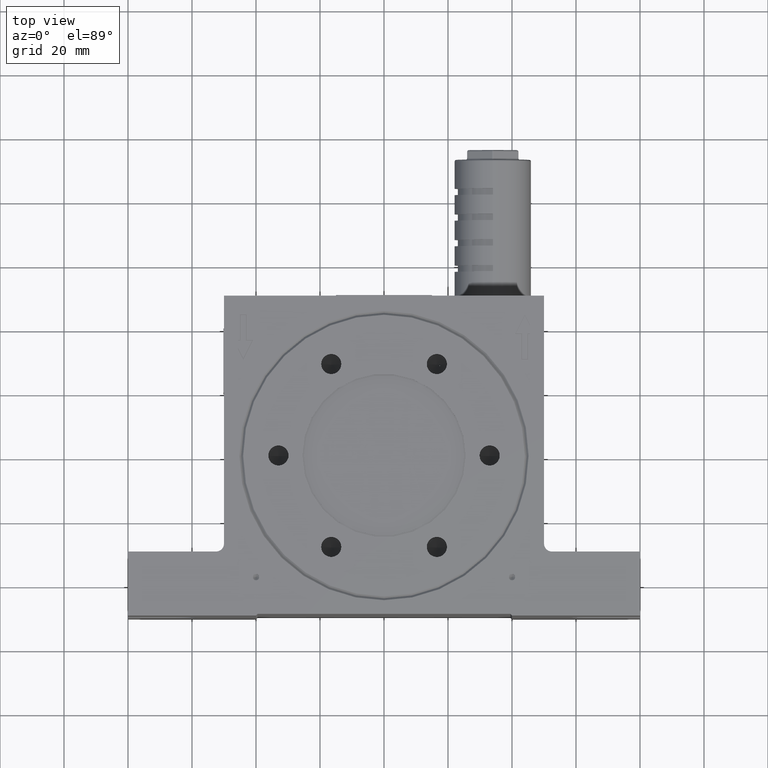
[diagram: clean part render]
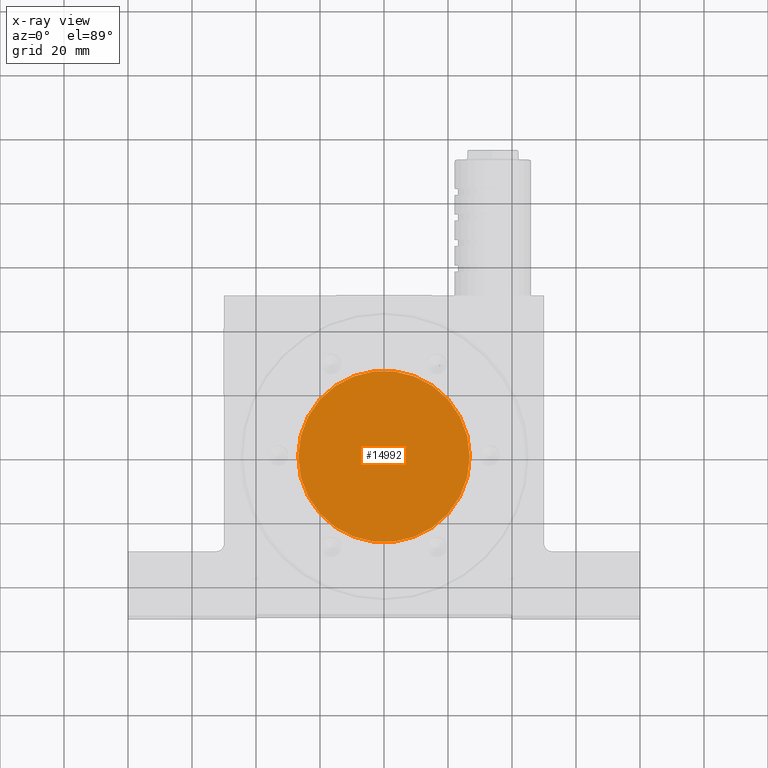
[diagram: x-ray — body ghosted, one internal face saturated and labeled with its STEP entity id]
A machine part, top view, then the same camera in x-ray: the body is ghosted and one INTERNAL B-rep face — a face not visible from any outside direction — is saturated and labeled: STEP entity #14992.
In plain terms, the highlighted planar face has unit normal (-0, 0, 1).
Its self-contained STEP definition (entity closure, byte-faithful):
#2470 = AXIS2_PLACEMENT_3D ( 'NONE', #8339, #4253, #4172 ) ;
#2895 = CARTESIAN_POINT ( 'NONE',  ( 0.0000000000000000000, 0.0000000000000000000, 17.50000000000000000 ) ) ;
#3148 = FACE_OUTER_BOUND ( 'NONE', #6642, .T. ) ;
#4172 = DIRECTION ( 'NONE',  ( 1.000000000000000000, 0.0000000000000000000, 0.0000000000000000000 ) ) ;
#4253 = DIRECTION ( 'NONE',  ( -1.627025617018336800E-030, -8.801438384760311500E-031, -1.000000000000000000 ) ) ;
#4728 = DIRECTION ( 'NONE',  ( -1.627025617018336800E-030, 8.801438384760311500E-031, 1.000000000000000000 ) ) ;
#4790 = DIRECTION ( 'NONE',  ( -1.627025617018336800E-030, -8.801438384760311500E-031, -1.000000000000000000 ) ) ;
#6217 = CARTESIAN_POINT ( 'NONE',  ( -26.80000000000000100, 3.837804412588423900E-059, 17.50000000000000000 ) ) ;
#6642 = EDGE_LOOP ( 'NONE', ( #14102, #20673 ) ) ;
#8339 = CARTESIAN_POINT ( 'NONE',  ( 0.0000000000000000000, 0.0000000000000000000, 17.50000000000000000 ) ) ;
#11587 = CARTESIAN_POINT ( 'NONE',  ( 26.80000000000000100, 3.282053421714906600E-015, 17.50000000000000000 ) ) ;
#12974 = CIRCLE ( 'NONE', #2470, 26.80000000000000100 ) ;
#13297 = VERTEX_POINT ( 'NONE', #11587 ) ;
#14102 = ORIENTED_EDGE ( 'NONE', *, *, #22601, .F. ) ;
#14992 = ADVANCED_FACE ( 'NONE', ( #3148 ), #23838, .T. ) ;
#15431 = AXIS2_PLACEMENT_3D ( 'NONE', #2895, #4728, #16309 ) ;
#16096 = AXIS2_PLACEMENT_3D ( 'NONE', #20531, #4790, #18687 ) ;
#16309 = DIRECTION ( 'NONE',  ( 1.000000000000000000, 0.0000000000000000000, 1.627025617018336800E-030 ) ) ;
#16554 = CIRCLE ( 'NONE', #16096, 26.80000000000000100 ) ;
#16960 = VERTEX_POINT ( 'NONE', #6217 ) ;
#18073 = EDGE_CURVE ( 'NONE', #13297, #16960, #16554, .T. ) ;
#18687 = DIRECTION ( 'NONE',  ( 1.000000000000000000, 0.0000000000000000000, 0.0000000000000000000 ) ) ;
#20531 = CARTESIAN_POINT ( 'NONE',  ( 0.0000000000000000000, 0.0000000000000000000, 17.50000000000000000 ) ) ;
#20673 = ORIENTED_EDGE ( 'NONE', *, *, #18073, .F. ) ;
#22601 = EDGE_CURVE ( 'NONE', #16960, #13297, #12974, .T. ) ;
#23838 = PLANE ( 'NONE',  #15431 ) ;